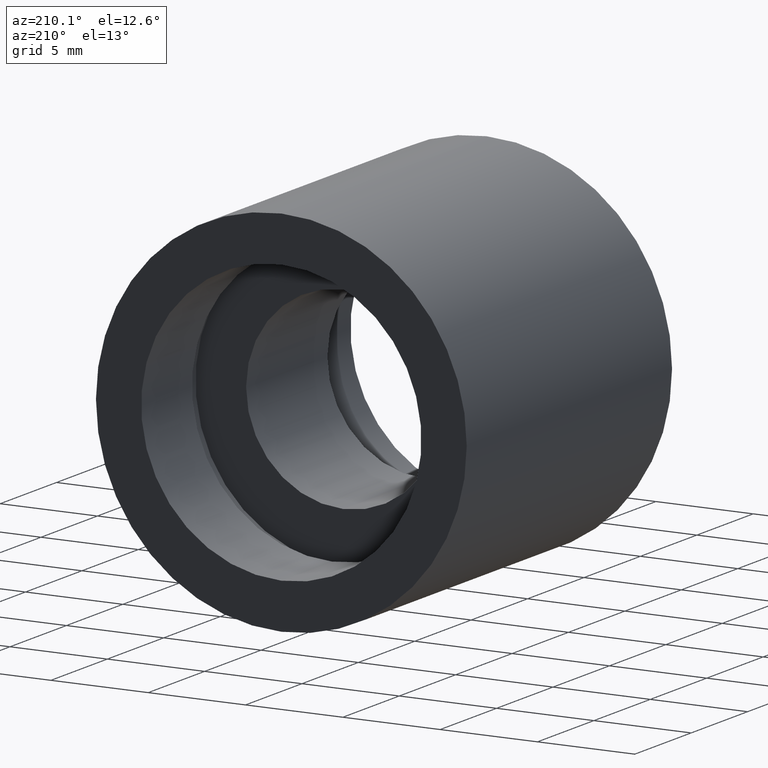
[diagram: clean part render]
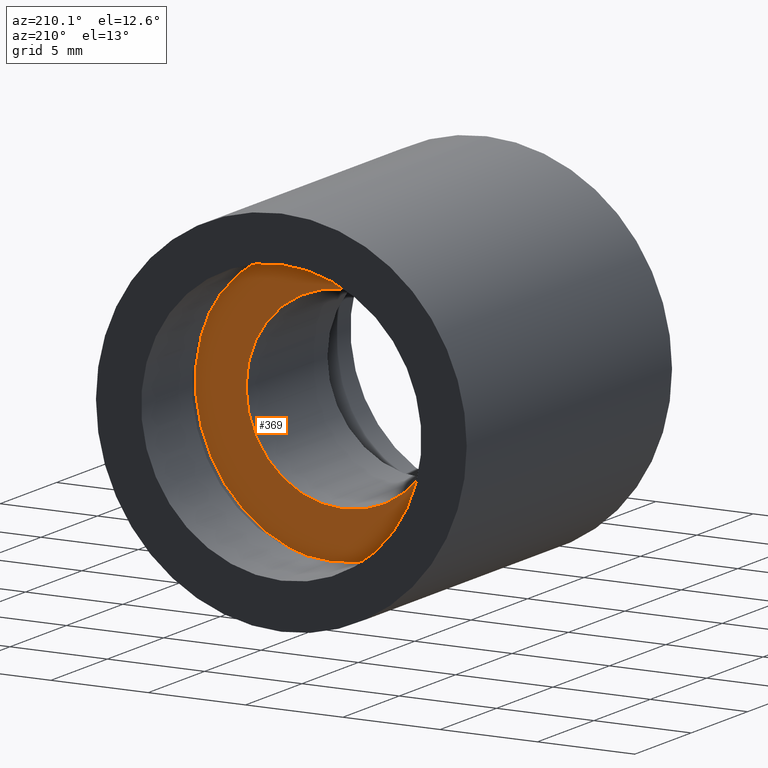
[diagram: same view with one face highlighted and labeled with its STEP entity id]
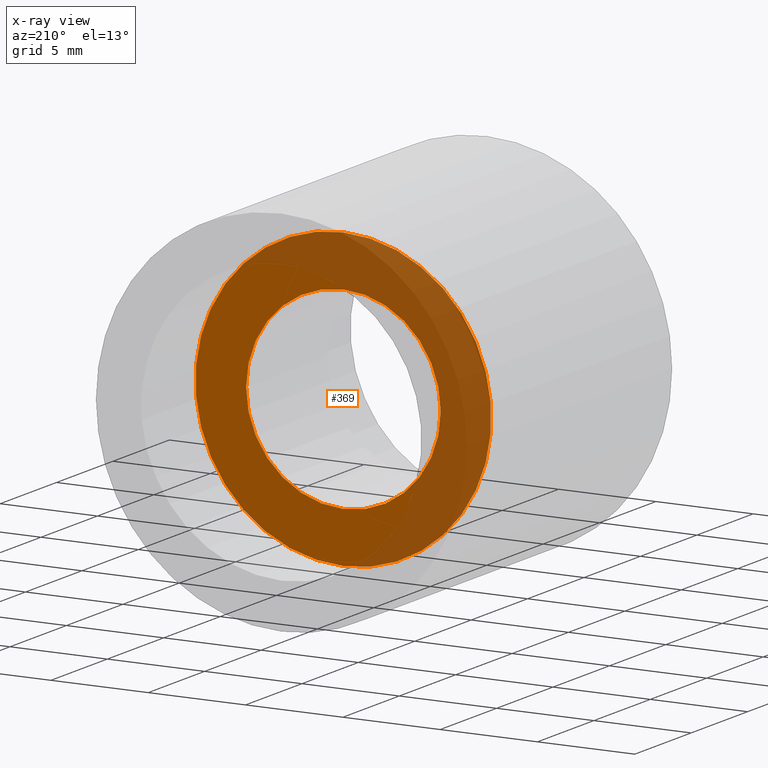
[diagram: x-ray of the same camera — body ghosted, the highlighted face saturated]
A machine part, auxiliary view. The second image highlights one B-rep face of the part: STEP entity #369.
The next image is the same camera in x-ray: the body ghosted, the highlighted face saturated — about 50% of this face is hidden behind the body in this view.
In plain terms, the highlighted planar face has unit normal (0, -1, 0).
Its self-contained STEP definition (entity closure, byte-faithful):
#1 = PLANE ( 'NONE',  #598 ) ;
#17 = CIRCLE ( 'NONE', #61, 7.600000000000019200 ) ;
#20 = VERTEX_POINT ( 'NONE', #148 ) ;
#36 = CARTESIAN_POINT ( 'NONE',  ( 0.0000000000000000000, 12.69999999999998900, 5.000000000000019500 ) ) ;
#61 = AXIS2_PLACEMENT_3D ( 'NONE', #379, #138, #521 ) ;
#67 = FACE_BOUND ( 'NONE', #383, .T. ) ;
#79 = DIRECTION ( 'NONE',  ( -0.0000000000000000000, 1.000000000000000000, -0.0000000000000000000 ) ) ;
#107 = EDGE_CURVE ( 'NONE', #358, #546, #17, .T. ) ;
#122 = CARTESIAN_POINT ( 'NONE',  ( 0.0000000000000000000, 12.69999999999998900, 0.0000000000000000000 ) ) ;
#123 = ORIENTED_EDGE ( 'NONE', *, *, #234, .F. ) ;
#138 = DIRECTION ( 'NONE',  ( -0.0000000000000000000, 1.000000000000000000, -0.0000000000000000000 ) ) ;
#148 = CARTESIAN_POINT ( 'NONE',  ( 6.123233995736789000E-016, 12.69999999999998900, -5.000000000000019500 ) ) ;
#176 = DIRECTION ( 'NONE',  ( 0.0000000000000000000, 0.0000000000000000000, 1.000000000000000000 ) ) ;
#186 = EDGE_LOOP ( 'NONE', ( #360, #227 ) ) ;
#203 = FACE_OUTER_BOUND ( 'NONE', #186, .T. ) ;
#226 = CIRCLE ( 'NONE', #574, 5.000000000000019500 ) ;
#227 = ORIENTED_EDGE ( 'NONE', *, *, #107, .T. ) ;
#234 = EDGE_CURVE ( 'NONE', #20, #452, #363, .T. ) ;
#248 = CARTESIAN_POINT ( 'NONE',  ( 0.0000000000000000000, 12.69999999999998900, 7.600000000000019200 ) ) ;
#250 = DIRECTION ( 'NONE',  ( 0.0000000000000000000, 0.0000000000000000000, 1.000000000000000000 ) ) ;
#263 = EDGE_CURVE ( 'NONE', #546, #358, #277, .T. ) ;
#265 = DIRECTION ( 'NONE',  ( -0.0000000000000000000, 1.000000000000000000, -0.0000000000000000000 ) ) ;
#277 = CIRCLE ( 'NONE', #357, 7.600000000000019200 ) ;
#283 = CARTESIAN_POINT ( 'NONE',  ( 5.000000000000019500, 12.69999999999998200, 0.0000000000000000000 ) ) ;
#325 = CARTESIAN_POINT ( 'NONE',  ( 9.307315673519907200E-016, 12.69999999999998900, -7.600000000000019200 ) ) ;
#341 = CARTESIAN_POINT ( 'NONE',  ( 0.0000000000000000000, 12.69999999999998900, 0.0000000000000000000 ) ) ;
#357 = AXIS2_PLACEMENT_3D ( 'NONE', #371, #265, #464 ) ;
#358 = VERTEX_POINT ( 'NONE', #325 ) ;
#360 = ORIENTED_EDGE ( 'NONE', *, *, #263, .T. ) ;
#363 = CIRCLE ( 'NONE', #505, 5.000000000000019500 ) ;
#369 = ADVANCED_FACE ( 'NONE', ( #67, #203 ), #1, .F. ) ;
#371 = CARTESIAN_POINT ( 'NONE',  ( 0.0000000000000000000, 12.69999999999998900, 0.0000000000000000000 ) ) ;
#379 = CARTESIAN_POINT ( 'NONE',  ( 0.0000000000000000000, 12.69999999999998900, 0.0000000000000000000 ) ) ;
#383 = EDGE_LOOP ( 'NONE', ( #592, #123 ) ) ;
#422 = DIRECTION ( 'NONE',  ( 0.0000000000000000000, -1.000000000000000000, 0.0000000000000000000 ) ) ;
#452 = VERTEX_POINT ( 'NONE', #36 ) ;
#464 = DIRECTION ( 'NONE',  ( 0.0000000000000000000, 0.0000000000000000000, 1.000000000000000000 ) ) ;
#489 = DIRECTION ( 'NONE',  ( -0.0000000000000000000, 1.000000000000000000, -0.0000000000000000000 ) ) ;
#505 = AXIS2_PLACEMENT_3D ( 'NONE', #122, #79, #176 ) ;
#520 = DIRECTION ( 'NONE',  ( 0.0000000000000000000, -0.0000000000000000000, -1.000000000000000000 ) ) ;
#521 = DIRECTION ( 'NONE',  ( 0.0000000000000000000, 0.0000000000000000000, 1.000000000000000000 ) ) ;
#541 = EDGE_CURVE ( 'NONE', #452, #20, #226, .T. ) ;
#546 = VERTEX_POINT ( 'NONE', #248 ) ;
#574 = AXIS2_PLACEMENT_3D ( 'NONE', #341, #489, #250 ) ;
#592 = ORIENTED_EDGE ( 'NONE', *, *, #541, .F. ) ;
#598 = AXIS2_PLACEMENT_3D ( 'NONE', #283, #422, #520 ) ;